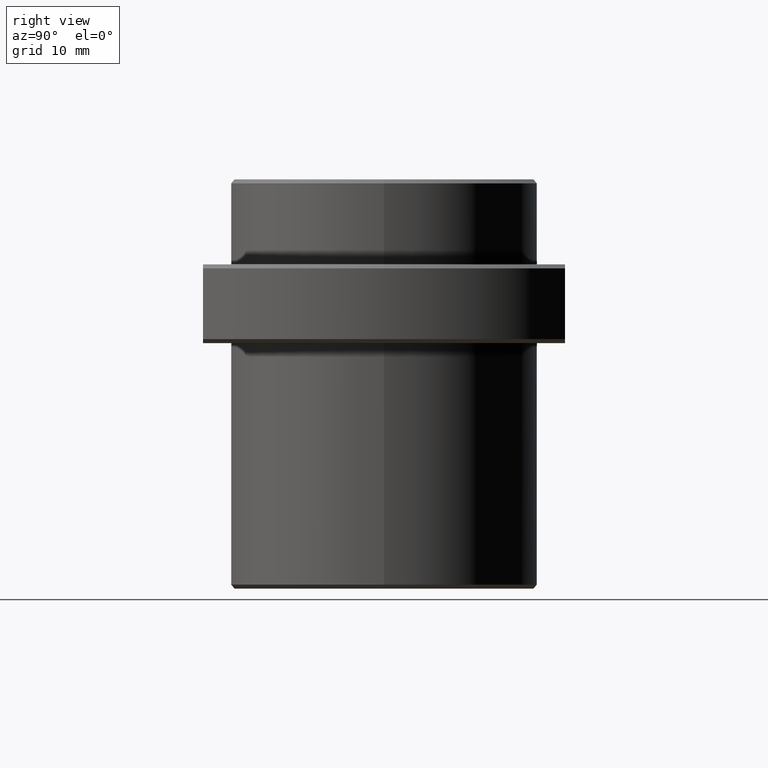
[diagram: clean part render]
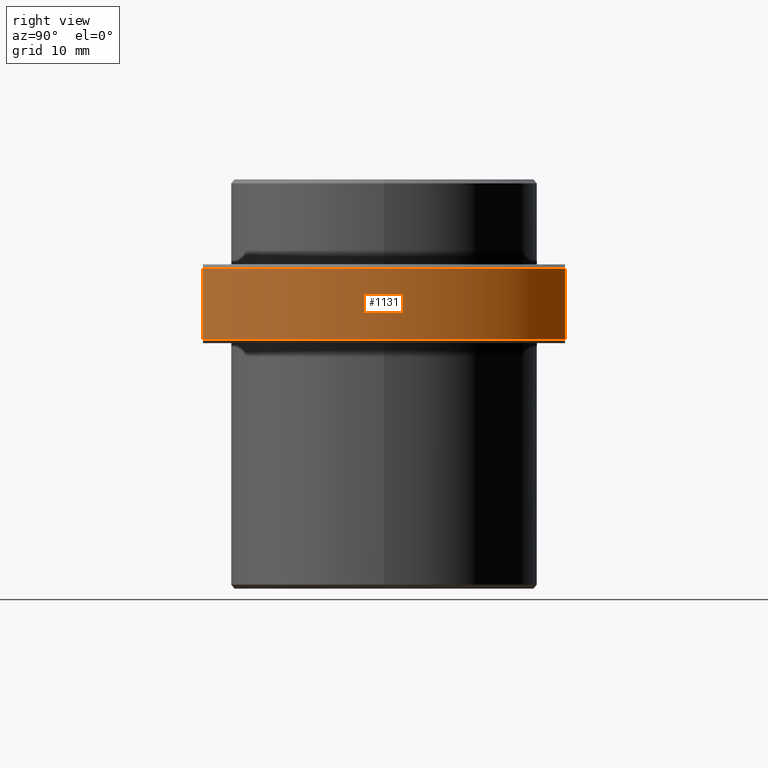
[diagram: same view with one face highlighted and labeled with its STEP entity id]
A machine part, right view. The second image highlights one B-rep face of the part: STEP entity #1131.
In plain terms, the highlighted cylindrical surface (partial cylindrical patch) has radius 31 mm, axis along (0, 0, 1).
Its self-contained STEP definition (entity closure, byte-faithful):
#1083=AXIS2_PLACEMENT_3D('Circle Axis2P3D',#1081,#1082,$) ;
#1104=AXIS2_PLACEMENT_3D('Cylinder Axis2P3D',#1101,#1102,#1103) ;
#1122=AXIS2_PLACEMENT_3D('Circle Axis2P3D',#1120,#1121,$) ;
#1078=CARTESIAN_POINT('Vertex',(20.7846096908,-23.,40.7)) ;
#1081=CARTESIAN_POINT('Axis2P3D Location',(3.55271367879E-015,3.18736465172E-015,40.7)) ;
#1085=CARTESIAN_POINT('Vertex',(20.7846096908,23.,40.7)) ;
#1101=CARTESIAN_POINT('Axis2P3D Location',(0.,0.,36.2)) ;
#1106=CARTESIAN_POINT('Line Origine',(20.7846096908,23.,36.2)) ;
#1110=CARTESIAN_POINT('Vertex',(20.7846096908,23.,31.7)) ;
#1113=CARTESIAN_POINT('Line Origine',(20.7846096908,-23.,36.2)) ;
#1117=CARTESIAN_POINT('Vertex',(20.7846096908,-23.,31.7)) ;
#1120=CARTESIAN_POINT('Axis2P3D Location',(0.,0.,31.7)) ;
#1082=DIRECTION('Axis2P3D Direction',(-5.08926368919E-015,6.96699009725E-015,1.)) ;
#1102=DIRECTION('Axis2P3D Direction',(0.,0.,1.)) ;
#1103=DIRECTION('Axis2P3D XDirection',(0.670471280349,-0.741935483871,0.)) ;
#1107=DIRECTION('Vector Direction',(0.,0.,1.)) ;
#1114=DIRECTION('Vector Direction',(0.,0.,1.)) ;
#1121=DIRECTION('Axis2P3D Direction',(0.,0.,1.)) ;
#1108=VECTOR('Line Direction',#1107,1.) ;
#1115=VECTOR('Line Direction',#1114,1.) ;
#1126=ORIENTED_EDGE('',*,*,#1112,.T.) ;
#1127=ORIENTED_EDGE('',*,*,#1087,.F.) ;
#1128=ORIENTED_EDGE('',*,*,#1119,.F.) ;
#1129=ORIENTED_EDGE('',*,*,#1124,.T.) ;
#1131=ADVANCED_FACE('',(#1130),#1105,.T.) ;
#1084=CIRCLE('generated circle',#1083,31.) ;
#1123=CIRCLE('generated circle',#1122,31.) ;
#1105=CYLINDRICAL_SURFACE('generated cylinder',#1104,31.) ;
#1087=EDGE_CURVE('',#1079,#1086,#1084,.T.) ;
#1112=EDGE_CURVE('',#1111,#1086,#1109,.T.) ;
#1119=EDGE_CURVE('',#1118,#1079,#1116,.T.) ;
#1124=EDGE_CURVE('',#1118,#1111,#1123,.T.) ;
#1125=EDGE_LOOP('',(#1126,#1127,#1128,#1129)) ;
#1130=FACE_OUTER_BOUND('',#1125,.T.) ;
#1109=LINE('Line',#1106,#1108) ;
#1116=LINE('Line',#1113,#1115) ;
#1079=VERTEX_POINT('',#1078) ;
#1086=VERTEX_POINT('',#1085) ;
#1111=VERTEX_POINT('',#1110) ;
#1118=VERTEX_POINT('',#1117) ;